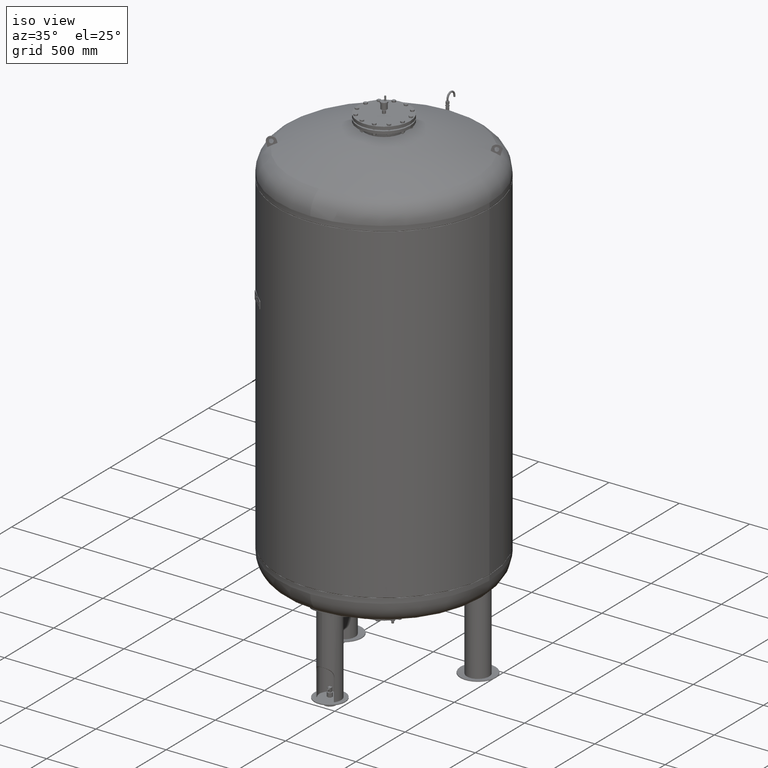
[diagram: clean part render]
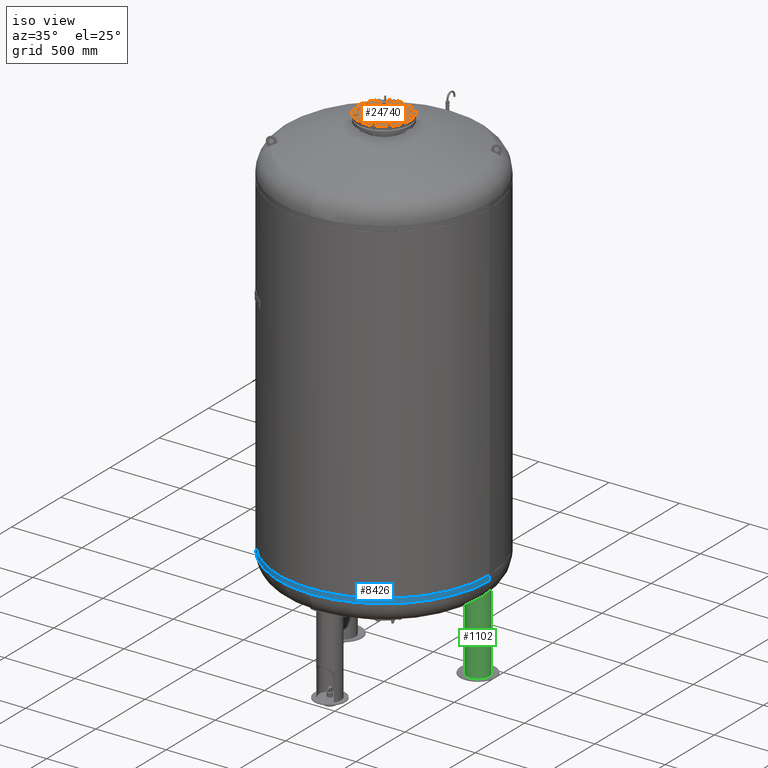
[diagram: same view with three faces highlighted in distinct colors, each labeled with its STEP entity id]
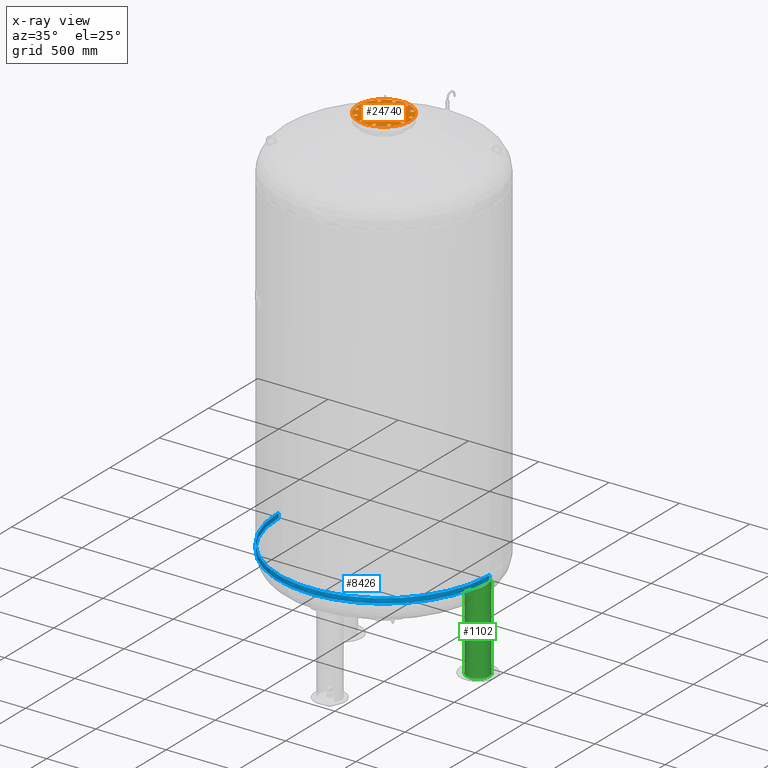
[diagram: x-ray of the same camera — body ghosted, the three highlighted faces saturated]
A machine part, iso view with three faces highlighted in distinct colors.
The next image is the same camera in x-ray (body ghosted, the three faces saturated) — at least one of them is partly hidden behind the body in this view.
Their STEP definitions:

[orange] entity #24740 — the highlighted planar face has unit normal (0, 0, 1).
#16978=CARTESIAN_POINT('',(-187.500000000000000,0.0,3591.0));
#16979=VERTEX_POINT('',#16978);
#16995=CARTESIAN_POINT('',(187.500000000000000,-2.296137E-014,3591.0));
#16996=VERTEX_POINT('',#16995);
#17003=CARTESIAN_POINT('',(0.0,0.0,3591.0));
#17004=DIRECTION('',(0.0,0.0,-1.0));
#17005=DIRECTION('',(-1.0,0.0,0.0));
#17006=AXIS2_PLACEMENT_3D('',#17003,#17004,#17005);
#17007=CIRCLE('',#17006,187.500000000000000);
#17008=EDGE_CURVE('',#16996,#16979,#17007,.T.);
#22234=CARTESIAN_POINT('',(157.729139400922860,30.104983413641008,3591.0));
#22235=VERTEX_POINT('',#22234);
#22236=CARTESIAN_POINT('',(148.288440171855850,40.247625971983268,3591.0));
#22237=VERTEX_POINT('',#22236);
#22238=CARTESIAN_POINT('',(157.729139400922860,30.104983413641008,3591.0));
#22239=DIRECTION('',(-0.681323780155013,0.731982176419128,0.0));
#22240=VECTOR('',#22239,13.856406460551090);
#22241=LINE('',#22238,#22240);
#22242=EDGE_CURVE('',#22235,#22237,#22241,.T.);
#22274=CARTESIAN_POINT('',(171.233275132485970,33.209547496330110,3591.0));
#22275=VERTEX_POINT('',#22274);
#22276=CARTESIAN_POINT('',(171.233275132485970,33.209547496330110,3591.0));
#22277=DIRECTION('',(-0.974577049973894,-0.224052613607123,0.0));
#22278=VECTOR('',#22277,13.856406460551119);
#22279=LINE('',#22276,#22278);
#22280=EDGE_CURVE('',#22275,#22235,#22279,.T.);
#22305=CARTESIAN_POINT('',(175.296711634982050,46.456754137361422,3591.0));
#22306=VERTEX_POINT('',#22305);
#22307=CARTESIAN_POINT('',(175.296711634982050,46.456754137361422,3591.0));
#22308=DIRECTION('',(-0.293253269818881,-0.956034790026249,0.0));
#22309=VECTOR('',#22308,13.856406460551076);
#22310=LINE('',#22307,#22309);
#22311=EDGE_CURVE('',#22306,#22275,#22310,.T.);
#22336=CARTESIAN_POINT('',(152.351876674351930,53.494832613014587,3591.0));
#22337=VERTEX_POINT('',#22336);
#22338=CARTESIAN_POINT('',(148.288440171855850,40.247625971983268,3591.0));
#22339=DIRECTION('',(0.293253269818881,0.956034790026249,0.0));
#22340=VECTOR('',#22339,13.856406460551083);
#22341=LINE('',#22338,#22340);
#22342=EDGE_CURVE('',#22237,#22337,#22341,.T.);
#22367=CARTESIAN_POINT('',(165.856012405915040,56.599396695703689,3591.0));
#22368=VERTEX_POINT('',#22367);
#22369=CARTESIAN_POINT('',(152.351876674351930,53.494832613014587,3591.0));
#22370=DIRECTION('',(0.974577049973894,0.224052613607123,0.0));
#22371=VECTOR('',#22370,13.856406460551119);
#22372=LINE('',#22369,#22371);
#22373=EDGE_CURVE('',#22337,#22368,#22372,.T.);
#22398=CARTESIAN_POINT('',(165.856012405915040,56.599396695703689,3591.0));
#22399=DIRECTION('',(0.681323780155012,-0.731982176419129,0.0));
#22400=VECTOR('',#22399,13.856406460551096);
#22401=LINE('',#22398,#22400);
#22402=EDGE_CURVE('',#22368,#22306,#22401,.T.);
#22434=CARTESIAN_POINT('',(121.544949931435720,104.936250117183760,3591.0));
#22435=VERTEX_POINT('',#22434);
#22436=CARTESIAN_POINT('',(108.297743290404380,108.999686619679820,3591.0));
#22437=VERTEX_POINT('',#22436);
#22438=CARTESIAN_POINT('',(121.544949931435720,104.936250117183760,3591.0));
#22439=DIRECTION('',(-0.956034790026250,0.293253269818880,0.0));
#22440=VECTOR('',#22439,13.856406460551101);
#22441=LINE('',#22438,#22440);
#22442=EDGE_CURVE('',#22435,#22437,#22441,.T.);
#22474=CARTESIAN_POINT('',(131.687592489777960,114.376949346250780,3591.0));
#22475=VERTEX_POINT('',#22474);
#22476=CARTESIAN_POINT('',(131.687592489777960,114.376949346250780,3591.0));
#22477=DIRECTION('',(-0.731982176419127,-0.681323780155014,0.0));
#22478=VECTOR('',#22477,13.856406460551080);
#22479=LINE('',#22476,#22478);
#22480=EDGE_CURVE('',#22475,#22435,#22479,.T.);
#22505=CARTESIAN_POINT('',(128.583028407088880,127.881085077813880,3591.0));
#22506=VERTEX_POINT('',#22505);
#22507=CARTESIAN_POINT('',(128.583028407088880,127.881085077813880,3591.0));
#22508=DIRECTION('',(0.224052613607122,-0.974577049973894,0.0));
#22509=VECTOR('',#22508,13.856406460551099);
#22510=LINE('',#22507,#22509);
#22511=EDGE_CURVE('',#22506,#22475,#22510,.T.);
#22536=CARTESIAN_POINT('',(105.193179207715300,122.503822351242900,3591.0));
#22537=VERTEX_POINT('',#22536);
#22538=CARTESIAN_POINT('',(108.297743290404380,108.999686619679820,3591.0));
#22539=DIRECTION('',(-0.224052613607122,0.974577049973894,0.0));
#22540=VECTOR('',#22539,13.856406460551087);
#22541=LINE('',#22538,#22540);
#22542=EDGE_CURVE('',#22437,#22537,#22541,.T.);
#22567=CARTESIAN_POINT('',(115.335821766057560,131.944521580309950,3591.0));
#22568=VERTEX_POINT('',#22567);
#22569=CARTESIAN_POINT('',(105.193179207715300,122.503822351242900,3591.0));
#22570=DIRECTION('',(0.731982176419127,0.681323780155014,0.0));
#22571=VECTOR('',#22570,13.856406460551121);
#22572=LINE('',#22569,#22571);
#22573=EDGE_CURVE('',#22537,#22568,#22572,.T.);
#22598=CARTESIAN_POINT('',(115.335821766057560,131.944521580309950,3591.0));
#22599=DIRECTION('',(0.956034790026249,-0.293253269818881,0.0));
#22600=VECTOR('',#22599,13.856406460551076);
#22601=LINE('',#22598,#22600);
#22602=EDGE_CURVE('',#22568,#22506,#22601,.T.);
#22634=CARTESIAN_POINT('',(52.792889283739193,151.649933345076730,3591.0));
#22635=VERTEX_POINT('',#22634);
#22636=CARTESIAN_POINT('',(39.288753552176118,148.545369262387680,3591.0));
#22637=VERTEX_POINT('',#22636);
#22638=CARTESIAN_POINT('',(52.792889283739193,151.649933345076730,3591.0));
#22639=DIRECTION('',(-0.974577049973894,-0.224052613607120,0.0));
#22640=VECTOR('',#22639,13.856406460551073);
#22641=LINE('',#22638,#22640);
#22642=EDGE_CURVE('',#22635,#22637,#22641,.T.);
#22674=CARTESIAN_POINT('',(56.856325786235274,164.897139986108100,3591.0));
#22675=VERTEX_POINT('',#22674);
#22676=CARTESIAN_POINT('',(56.856325786235274,164.897139986108100,3591.0));
#22677=DIRECTION('',(-0.293253269818881,-0.956034790026249,0.0));
#22678=VECTOR('',#22677,13.856406460551133);
#22679=LINE('',#22676,#22678);
#22680=EDGE_CURVE('',#22675,#22635,#22679,.T.);
#22705=CARTESIAN_POINT('',(47.415626557168267,175.039782544450330,3591.0));
#22706=VERTEX_POINT('',#22705);
#22707=CARTESIAN_POINT('',(47.415626557168267,175.039782544450330,3591.0));
#22708=DIRECTION('',(0.681323780155014,-0.731982176419128,0.0));
#22709=VECTOR('',#22708,13.856406460551069);
#22710=LINE('',#22707,#22709);
#22711=EDGE_CURVE('',#22706,#22675,#22710,.T.);
#22736=CARTESIAN_POINT('',(29.848054323109103,158.688011820729910,3591.0));
#22737=VERTEX_POINT('',#22736);
#22738=CARTESIAN_POINT('',(39.288753552176118,148.545369262387680,3591.0));
#22739=DIRECTION('',(-0.681323780155014,0.731982176419127,0.0));
#22740=VECTOR('',#22739,13.856406460551076);
#22741=LINE('',#22738,#22740);
#22742=EDGE_CURVE('',#22637,#22737,#22741,.T.);
#22767=CARTESIAN_POINT('',(33.911490825605156,171.935218461761250,3591.0));
#22768=VERTEX_POINT('',#22767);
#22769=CARTESIAN_POINT('',(29.848054323109103,158.688011820729910,3591.0));
#22770=DIRECTION('',(0.293253269818879,0.956034790026250,0.0));
#22771=VECTOR('',#22770,13.856406460551097);
#22772=LINE('',#22769,#22771);
#22773=EDGE_CURVE('',#22737,#22768,#22772,.T.);
#22798=CARTESIAN_POINT('',(33.911490825605156,171.935218461761250,3591.0));
#22799=DIRECTION('',(0.974577049973894,0.224052613607121,0.0));
#22800=VECTOR('',#22799,13.856406460551113);
#22801=LINE('',#22798,#22800);
#22802=EDGE_CURVE('',#22768,#22706,#22801,.T.);
#22834=CARTESIAN_POINT('',(-30.104983413641008,157.729139400922860,3591.0));
#22835=VERTEX_POINT('',#22834);
#22836=CARTESIAN_POINT('',(-40.247625971983268,148.288440171855850,3591.0));
#22837=VERTEX_POINT('',#22836);
#22838=CARTESIAN_POINT('',(-30.104983413641008,157.729139400922860,3591.0));
#22839=DIRECTION('',(-0.731982176419128,-0.681323780155013,0.0));
#22840=VECTOR('',#22839,13.856406460551090);
#22841=LINE('',#22838,#22840);
#22842=EDGE_CURVE('',#22835,#22837,#22841,.T.);
#22874=CARTESIAN_POINT('',(-33.209547496330110,171.233275132485970,3591.0));
#22875=VERTEX_POINT('',#22874);
#22876=CARTESIAN_POINT('',(-33.209547496330110,171.233275132485970,3591.0));
#22877=DIRECTION('',(0.224052613607123,-0.974577049973894,0.0));
#22878=VECTOR('',#22877,13.856406460551119);
#22879=LINE('',#22876,#22878);
#22880=EDGE_CURVE('',#22875,#22835,#22879,.T.);
#22905=CARTESIAN_POINT('',(-46.456754137361422,175.296711634982050,3591.0));
#22906=VERTEX_POINT('',#22905);
#22907=CARTESIAN_POINT('',(-46.456754137361422,175.296711634982050,3591.0));
#22908=DIRECTION('',(0.956034790026249,-0.293253269818881,0.0));
#22909=VECTOR('',#22908,13.856406460551076);
#22910=LINE('',#22907,#22909);
#22911=EDGE_CURVE('',#22906,#22875,#22910,.T.);
#22936=CARTESIAN_POINT('',(-53.494832613014587,152.351876674351930,3591.0));
#22937=VERTEX_POINT('',#22936);
#22938=CARTESIAN_POINT('',(-40.247625971983268,148.288440171855850,3591.0));
#22939=DIRECTION('',(-0.956034790026249,0.293253269818881,0.0));
#22940=VECTOR('',#22939,13.856406460551083);
#22941=LINE('',#22938,#22940);
#22942=EDGE_CURVE('',#22837,#22937,#22941,.T.);
#22967=CARTESIAN_POINT('',(-56.599396695703689,165.856012405915040,3591.0));
#22968=VERTEX_POINT('',#22967);
#22969=CARTESIAN_POINT('',(-53.494832613014587,152.351876674351930,3591.0));
#22970=DIRECTION('',(-0.224052613607123,0.974577049973894,0.0));
#22971=VECTOR('',#22970,13.856406460551119);
#22972=LINE('',#22969,#22971);
#22973=EDGE_CURVE('',#22937,#22968,#22972,.T.);
#22998=CARTESIAN_POINT('',(-56.599396695703689,165.856012405915040,3591.0));
#22999=DIRECTION('',(0.731982176419129,0.681323780155012,0.0));
#23000=VECTOR('',#22999,13.856406460551096);
#23001=LINE('',#22998,#23000);
#23002=EDGE_CURVE('',#22968,#22906,#23001,.T.);
#23034=CARTESIAN_POINT('',(-104.936250117183700,121.544949931435750,3591.0));
#23035=VERTEX_POINT('',#23034);
#23036=CARTESIAN_POINT('',(-108.999686619679760,108.297743290404440,3591.0));
#23037=VERTEX_POINT('',#23036);
#23038=CARTESIAN_POINT('',(-104.936250117183700,121.544949931435750,3591.0));
#23039=DIRECTION('',(-0.293253269818880,-0.956034790026249,0.0));
#23040=VECTOR('',#23039,13.856406460551073);
#23041=LINE('',#23038,#23040);
#23042=EDGE_CURVE('',#23035,#23037,#23041,.T.);
#23074=CARTESIAN_POINT('',(-114.376949346250730,131.687592489778010,3591.0));
#23075=VERTEX_POINT('',#23074);
#23076=CARTESIAN_POINT('',(-114.376949346250730,131.687592489778010,3591.0));
#23077=DIRECTION('',(0.681323780155013,-0.731982176419128,0.0));
#23078=VECTOR('',#23077,13.856406460551101);
#23079=LINE('',#23076,#23078);
#23080=EDGE_CURVE('',#23075,#23035,#23079,.T.);
#23105=CARTESIAN_POINT('',(-127.881085077813810,128.583028407088930,3591.0));
#23106=VERTEX_POINT('',#23105);
#23107=CARTESIAN_POINT('',(-127.881085077813810,128.583028407088930,3591.0));
#23108=DIRECTION('',(0.974577049973894,0.224052613607122,0.0));
#23109=VECTOR('',#23108,13.856406460551087);
#23110=LINE('',#23107,#23109);
#23111=EDGE_CURVE('',#23106,#23075,#23110,.T.);
#23136=CARTESIAN_POINT('',(-122.503822351242850,105.193179207715360,3591.0));
#23137=VERTEX_POINT('',#23136);
#23138=CARTESIAN_POINT('',(-108.999686619679760,108.297743290404440,3591.0));
#23139=DIRECTION('',(-0.974577049973894,-0.224052613607122,0.0));
#23140=VECTOR('',#23139,13.856406460551087);
#23141=LINE('',#23138,#23140);
#23142=EDGE_CURVE('',#23037,#23137,#23141,.T.);
#23167=CARTESIAN_POINT('',(-131.944521580309900,115.335821766057620,3591.0));
#23168=VERTEX_POINT('',#23167);
#23169=CARTESIAN_POINT('',(-122.503822351242850,105.193179207715360,3591.0));
#23170=DIRECTION('',(-0.681323780155014,0.731982176419127,0.0));
#23171=VECTOR('',#23170,13.856406460551121);
#23172=LINE('',#23169,#23171);
#23173=EDGE_CURVE('',#23137,#23168,#23172,.T.);
#23198=CARTESIAN_POINT('',(-131.944521580309900,115.335821766057620,3591.0));
#23199=DIRECTION('',(0.293253269818882,0.956034790026249,0.0));
#23200=VECTOR('',#23199,13.856406460551081);
#23201=LINE('',#23198,#23200);
#23202=EDGE_CURVE('',#23168,#23106,#23201,.T.);
#23234=CARTESIAN_POINT('',(-151.649933345076730,52.792889283739214,3591.0));
#23235=VERTEX_POINT('',#23234);
#23236=CARTESIAN_POINT('',(-148.545369262387650,39.288753552176125,3591.0));
#23237=VERTEX_POINT('',#23236);
#23238=CARTESIAN_POINT('',(-151.649933345076730,52.792889283739214,3591.0));
#23239=DIRECTION('',(0.224052613607122,-0.974577049973894,0.0));
#23240=VECTOR('',#23239,13.856406460551092);
#23241=LINE('',#23238,#23240);
#23242=EDGE_CURVE('',#23235,#23237,#23241,.T.);
#23274=CARTESIAN_POINT('',(-164.897139986108100,56.856325786235296,3591.0));
#23275=VERTEX_POINT('',#23274);
#23276=CARTESIAN_POINT('',(-164.897139986108100,56.856325786235296,3591.0));
#23277=DIRECTION('',(0.956034790026249,-0.293253269818881,0.0));
#23278=VECTOR('',#23277,13.856406460551133);
#23279=LINE('',#23276,#23278);
#23280=EDGE_CURVE('',#23275,#23235,#23279,.T.);
#23305=CARTESIAN_POINT('',(-175.039782544450300,47.415626557168260,3591.0));
#23306=VERTEX_POINT('',#23305);
#23307=CARTESIAN_POINT('',(-175.039782544450300,47.415626557168260,3591.0));
#23308=DIRECTION('',(0.731982176419126,0.681323780155016,0.0));
#23309=VECTOR('',#23308,13.856406460551069);
#23310=LINE('',#23307,#23309);
#23311=EDGE_CURVE('',#23306,#23275,#23310,.T.);
#23336=CARTESIAN_POINT('',(-158.688011820729910,29.848054323109110,3591.0));
#23337=VERTEX_POINT('',#23336);
#23338=CARTESIAN_POINT('',(-148.545369262387650,39.288753552176125,3591.0));
#23339=DIRECTION('',(-0.731982176419128,-0.681323780155013,0.0));
#23340=VECTOR('',#23339,13.856406460551096);
#23341=LINE('',#23338,#23340);
#23342=EDGE_CURVE('',#23237,#23337,#23341,.T.);
#23367=CARTESIAN_POINT('',(-171.935218461761250,33.911490825605171,3591.0));
#23368=VERTEX_POINT('',#23367);
#23369=CARTESIAN_POINT('',(-158.688011820729910,29.848054323109110,3591.0));
#23370=DIRECTION('',(-0.956034790026250,0.293253269818880,0.0));
#23371=VECTOR('',#23370,13.856406460551101);
#23372=LINE('',#23369,#23371);
#23373=EDGE_CURVE('',#23337,#23368,#23372,.T.);
#23398=CARTESIAN_POINT('',(-171.935218461761250,33.911490825605171,3591.0));
#23399=DIRECTION('',(-0.224052613607120,0.974577049973894,0.0));
#23400=VECTOR('',#23399,13.856406460551087);
#23401=LINE('',#23398,#23400);
#23402=EDGE_CURVE('',#23368,#23306,#23401,.T.);
#23434=CARTESIAN_POINT('',(-157.729139400922860,-30.104983413640987,3591.0));
#23435=VERTEX_POINT('',#23434);
#23436=CARTESIAN_POINT('',(-148.288440171855850,-40.247625971983247,3591.0));
#23437=VERTEX_POINT('',#23436);
#23438=CARTESIAN_POINT('',(-157.729139400922860,-30.104983413640987,3591.0));
#23439=DIRECTION('',(0.681323780155013,-0.731982176419128,0.0));
#23440=VECTOR('',#23439,13.856406460551090);
#23441=LINE('',#23438,#23440);
#23442=EDGE_CURVE('',#23435,#23437,#23441,.T.);
#23474=CARTESIAN_POINT('',(-171.233275132486000,-33.209547496330096,3591.0));
#23475=VERTEX_POINT('',#23474);
#23476=CARTESIAN_POINT('',(-171.233275132486000,-33.209547496330096,3591.0));
#23477=DIRECTION('',(0.974577049973894,0.224052613607123,0.0));
#23478=VECTOR('',#23477,13.856406460551147);
#23479=LINE('',#23476,#23478);
#23480=EDGE_CURVE('',#23475,#23435,#23479,.T.);
#23505=CARTESIAN_POINT('',(-175.296711634982050,-46.456754137361401,3591.0));
#23506=VERTEX_POINT('',#23505);
#23507=CARTESIAN_POINT('',(-175.296711634982050,-46.456754137361401,3591.0));
#23508=DIRECTION('',(0.293253269818880,0.956034790026250,0.0));
#23509=VECTOR('',#23508,13.856406460551062);
#23510=LINE('',#23507,#23509);
#23511=EDGE_CURVE('',#23506,#23475,#23510,.T.);
#23536=CARTESIAN_POINT('',(-152.351876674351960,-53.494832613014580,3591.0));
#23537=VERTEX_POINT('',#23536);
#23538=CARTESIAN_POINT('',(-148.288440171855850,-40.247625971983247,3591.0));
#23539=DIRECTION('',(-0.293253269818883,-0.956034790026249,0.0));
#23540=VECTOR('',#23539,13.856406460551106);
#23541=LINE('',#23538,#23540);
#23542=EDGE_CURVE('',#23437,#23537,#23541,.T.);
#23567=CARTESIAN_POINT('',(-165.856012405915070,-56.599396695703646,3591.0));
#23568=VERTEX_POINT('',#23567);
#23569=CARTESIAN_POINT('',(-152.351876674351960,-53.494832613014580,3591.0));
#23570=DIRECTION('',(-0.974577049973894,-0.224052613607121,0.0));
#23571=VECTOR('',#23570,13.856406460551110);
#23572=LINE('',#23569,#23571);
#23573=EDGE_CURVE('',#23537,#23568,#23572,.T.);
#23598=CARTESIAN_POINT('',(-165.856012405915070,-56.599396695703646,3591.0));
#23599=DIRECTION('',(-0.681323780155012,0.731982176419129,0.0));
#23600=VECTOR('',#23599,13.856406460551062);
#23601=LINE('',#23598,#23600);
#23602=EDGE_CURVE('',#23568,#23506,#23601,.T.);
#23634=CARTESIAN_POINT('',(-121.544949931435750,-104.936250117183680,3591.0));
#23635=VERTEX_POINT('',#23634);
#23636=CARTESIAN_POINT('',(-108.297743290404440,-108.999686619679760,3591.0));
#23637=VERTEX_POINT('',#23636);
#23638=CARTESIAN_POINT('',(-121.544949931435750,-104.936250117183680,3591.0));
#23639=DIRECTION('',(0.956034790026249,-0.293253269818882,0.0));
#23640=VECTOR('',#23639,13.856406460551081);
#23641=LINE('',#23638,#23640);
#23642=EDGE_CURVE('',#23635,#23637,#23641,.T.);
#23674=CARTESIAN_POINT('',(-131.687592489778010,-114.376949346250730,3591.0));
#23675=VERTEX_POINT('',#23674);
#23676=CARTESIAN_POINT('',(-131.687592489778010,-114.376949346250730,3591.0));
#23677=DIRECTION('',(0.731982176419127,0.681323780155014,0.0));
#23678=VECTOR('',#23677,13.856406460551121);
#23679=LINE('',#23676,#23678);
#23680=EDGE_CURVE('',#23675,#23635,#23679,.T.);
#23705=CARTESIAN_POINT('',(-128.583028407088930,-127.881085077813790,3591.0));
#23706=VERTEX_POINT('',#23705);
#23707=CARTESIAN_POINT('',(-128.583028407088930,-127.881085077813790,3591.0));
#23708=DIRECTION('',(-0.224052613607122,0.974577049973894,0.0));
#23709=VECTOR('',#23708,13.856406460551071);
#23710=LINE('',#23707,#23709);
#23711=EDGE_CURVE('',#23706,#23675,#23710,.T.);
#23736=CARTESIAN_POINT('',(-105.193179207715360,-122.503822351242850,3591.0));
#23737=VERTEX_POINT('',#23736);
#23738=CARTESIAN_POINT('',(-108.297743290404440,-108.999686619679760,3591.0));
#23739=DIRECTION('',(0.224052613607122,-0.974577049973894,0.0));
#23740=VECTOR('',#23739,13.856406460551087);
#23741=LINE('',#23738,#23740);
#23742=EDGE_CURVE('',#23637,#23737,#23741,.T.);
#23767=CARTESIAN_POINT('',(-115.335821766057620,-131.944521580309900,3591.0));
#23768=VERTEX_POINT('',#23767);
#23769=CARTESIAN_POINT('',(-105.193179207715360,-122.503822351242850,3591.0));
#23770=DIRECTION('',(-0.731982176419127,-0.681323780155014,0.0));
#23771=VECTOR('',#23770,13.856406460551121);
#23772=LINE('',#23769,#23771);
#23773=EDGE_CURVE('',#23737,#23768,#23772,.T.);
#23798=CARTESIAN_POINT('',(-115.335821766057620,-131.944521580309900,3591.0));
#23799=DIRECTION('',(-0.956034790026249,0.293253269818883,0.0));
#23800=VECTOR('',#23799,13.856406460551085);
#23801=LINE('',#23798,#23800);
#23802=EDGE_CURVE('',#23768,#23706,#23801,.T.);
#23834=CARTESIAN_POINT('',(-52.792889283739228,-151.649933345076730,3591.0));
#23835=VERTEX_POINT('',#23834);
#23836=CARTESIAN_POINT('',(-39.288753552176132,-148.545369262387680,3591.0));
#23837=VERTEX_POINT('',#23836);
#23838=CARTESIAN_POINT('',(-52.792889283739228,-151.649933345076730,3591.0));
#23839=DIRECTION('',(0.974577049973894,0.224052613607120,0.0));
#23840=VECTOR('',#23839,13.856406460551094);
#23841=LINE('',#23838,#23840);
#23842=EDGE_CURVE('',#23835,#23837,#23841,.T.);
#23874=CARTESIAN_POINT('',(-56.856325786235296,-164.897139986108100,3591.0));
#23875=VERTEX_POINT('',#23874);
#23876=CARTESIAN_POINT('',(-56.856325786235296,-164.897139986108100,3591.0));
#23877=DIRECTION('',(0.293253269818880,0.956034790026250,0.0));
#23878=VECTOR('',#23877,13.856406460551129);
#23879=LINE('',#23876,#23878);
#23880=EDGE_CURVE('',#23875,#23835,#23879,.T.);
#23905=CARTESIAN_POINT('',(-47.415626557168281,-175.039782544450300,3591.0));
#23906=VERTEX_POINT('',#23905);
#23907=CARTESIAN_POINT('',(-47.415626557168281,-175.039782544450300,3591.0));
#23908=DIRECTION('',(-0.681323780155015,0.731982176419126,0.0));
#23909=VECTOR('',#23908,13.856406460551055);
#23910=LINE('',#23907,#23909);
#23911=EDGE_CURVE('',#23906,#23875,#23910,.T.);
#23936=CARTESIAN_POINT('',(-29.848054323109121,-158.688011820729910,3591.0));
#23937=VERTEX_POINT('',#23936);
#23938=CARTESIAN_POINT('',(-39.288753552176132,-148.545369262387680,3591.0));
#23939=DIRECTION('',(0.681323780155014,-0.731982176419127,0.0));
#23940=VECTOR('',#23939,13.856406460551073);
#23941=LINE('',#23938,#23940);
#23942=EDGE_CURVE('',#23837,#23937,#23941,.T.);
#23967=CARTESIAN_POINT('',(-33.911490825605199,-171.935218461761280,3591.0));
#23968=VERTEX_POINT('',#23967);
#23969=CARTESIAN_POINT('',(-29.848054323109121,-158.688011820729910,3591.0));
#23970=DIRECTION('',(-0.293253269818880,-0.956034790026249,0.0));
#23971=VECTOR('',#23970,13.856406460551133);
#23972=LINE('',#23969,#23971);
#23973=EDGE_CURVE('',#23937,#23968,#23972,.T.);
#23998=CARTESIAN_POINT('',(-33.911490825605199,-171.935218461761280,3591.0));
#23999=DIRECTION('',(-0.974577049973895,-0.224052613607118,0.0));
#24000=VECTOR('',#23999,13.856406460551074);
#24001=LINE('',#23998,#24000);
#24002=EDGE_CURVE('',#23968,#23906,#24001,.T.);
#24034=CARTESIAN_POINT('',(30.104983413640952,-157.729139400922890,3591.0));
#24035=VERTEX_POINT('',#24034);
#24036=CARTESIAN_POINT('',(40.247625971983211,-148.288440171855880,3591.0));
#24037=VERTEX_POINT('',#24036);
#24038=CARTESIAN_POINT('',(30.104983413640952,-157.729139400922890,3591.0));
#24039=DIRECTION('',(0.731982176419128,0.681323780155013,0.0));
#24040=VECTOR('',#24039,13.856406460551090);
#24041=LINE('',#24038,#24040);
#24042=EDGE_CURVE('',#24035,#24037,#24041,.T.);
#24074=CARTESIAN_POINT('',(33.209547496330039,-171.233275132486000,3591.0));
#24075=VERTEX_POINT('',#24074);
#24076=CARTESIAN_POINT('',(33.209547496330039,-171.233275132486000,3591.0));
#24077=DIRECTION('',(-0.224052613607122,0.974577049973894,0.0));
#24078=VECTOR('',#24077,13.856406460551115);
#24079=LINE('',#24076,#24078);
#24080=EDGE_CURVE('',#24075,#24035,#24079,.T.);
#24105=CARTESIAN_POINT('',(46.456754137361351,-175.296711634982070,3591.0));
#24106=VERTEX_POINT('',#24105);
#24107=CARTESIAN_POINT('',(46.456754137361351,-175.296711634982070,3591.0));
#24108=DIRECTION('',(-0.956034790026249,0.293253269818881,0.0));
#24109=VECTOR('',#24108,13.856406460551076);
#24110=LINE('',#24107,#24109);
#24111=EDGE_CURVE('',#24106,#24075,#24110,.T.);
#24136=CARTESIAN_POINT('',(53.494832613014523,-152.351876674351960,3591.0));
#24137=VERTEX_POINT('',#24136);
#24138=CARTESIAN_POINT('',(40.247625971983211,-148.288440171855880,3591.0));
#24139=DIRECTION('',(0.956034790026249,-0.293253269818881,0.0));
#24140=VECTOR('',#24139,13.856406460551076);
#24141=LINE('',#24138,#24140);
#24142=EDGE_CURVE('',#24037,#24137,#24141,.T.);
#24167=CARTESIAN_POINT('',(56.599396695703625,-165.856012405915070,3591.0));
#24168=VERTEX_POINT('',#24167);
#24169=CARTESIAN_POINT('',(53.494832613014523,-152.351876674351960,3591.0));
#24170=DIRECTION('',(0.224052613607123,-0.974577049973894,0.0));
#24171=VECTOR('',#24170,13.856406460551119);
#24172=LINE('',#24169,#24171);
#24173=EDGE_CURVE('',#24137,#24168,#24172,.T.);
#24198=CARTESIAN_POINT('',(56.599396695703625,-165.856012405915070,3591.0));
#24199=DIRECTION('',(-0.731982176419129,-0.681323780155012,0.0));
#24200=VECTOR('',#24199,13.856406460551101);
#24201=LINE('',#24198,#24200);
#24202=EDGE_CURVE('',#24168,#24106,#24201,.T.);
#24234=CARTESIAN_POINT('',(104.936250117183660,-121.544949931435800,3591.0));
#24235=VERTEX_POINT('',#24234);
#24236=CARTESIAN_POINT('',(108.999686619679750,-108.297743290404470,3591.0));
#24237=VERTEX_POINT('',#24236);
#24238=CARTESIAN_POINT('',(104.936250117183660,-121.544949931435800,3591.0));
#24239=DIRECTION('',(0.293253269818882,0.956034790026249,0.0));
#24240=VECTOR('',#24239,13.856406460551094);
#24241=LINE('',#24238,#24240);
#24242=EDGE_CURVE('',#24235,#24237,#24241,.T.);
#24274=CARTESIAN_POINT('',(114.376949346250710,-131.687592489778040,3591.0));
#24275=VERTEX_POINT('',#24274);
#24276=CARTESIAN_POINT('',(114.376949346250710,-131.687592489778040,3591.0));
#24277=DIRECTION('',(-0.681323780155015,0.731982176419126,0.0));
#24278=VECTOR('',#24277,13.856406460551110);
#24279=LINE('',#24276,#24278);
#24280=EDGE_CURVE('',#24275,#24235,#24279,.T.);
#24305=CARTESIAN_POINT('',(127.881085077813760,-128.583028407088960,3591.0));
#24306=VERTEX_POINT('',#24305);
#24307=CARTESIAN_POINT('',(127.881085077813760,-128.583028407088960,3591.0));
#24308=DIRECTION('',(-0.974577049973894,-0.224052613607122,0.0));
#24309=VECTOR('',#24308,13.856406460551058);
#24310=LINE('',#24307,#24309);
#24311=EDGE_CURVE('',#24306,#24275,#24310,.T.);
#24336=CARTESIAN_POINT('',(122.503822351242830,-105.193179207715390,3591.0));
#24337=VERTEX_POINT('',#24336);
#24338=CARTESIAN_POINT('',(108.999686619679750,-108.297743290404470,3591.0));
#24339=DIRECTION('',(0.974577049973894,0.224052613607122,0.0));
#24340=VECTOR('',#24339,13.856406460551087);
#24341=LINE('',#24338,#24340);
#24342=EDGE_CURVE('',#24237,#24337,#24341,.T.);
#24367=CARTESIAN_POINT('',(131.944521580309870,-115.335821766057650,3591.0));
#24368=VERTEX_POINT('',#24367);
#24369=CARTESIAN_POINT('',(122.503822351242830,-105.193179207715390,3591.0));
#24370=DIRECTION('',(0.681323780155014,-0.731982176419127,0.0));
#24371=VECTOR('',#24370,13.856406460551110);
#24372=LINE('',#24369,#24371);
#24373=EDGE_CURVE('',#24337,#24368,#24372,.T.);
#24398=CARTESIAN_POINT('',(131.944521580309870,-115.335821766057650,3591.0));
#24399=DIRECTION('',(-0.293253269818883,-0.956034790026249,0.0));
#24400=VECTOR('',#24399,13.856406460551085);
#24401=LINE('',#24398,#24400);
#24402=EDGE_CURVE('',#24368,#24306,#24401,.T.);
#24434=CARTESIAN_POINT('',(151.649933345076730,-52.792889283739228,3591.0));
#24435=VERTEX_POINT('',#24434);
#24436=CARTESIAN_POINT('',(148.545369262387650,-39.288753552176139,3591.0));
#24437=VERTEX_POINT('',#24436);
#24438=CARTESIAN_POINT('',(151.649933345076730,-52.792889283739228,3591.0));
#24439=DIRECTION('',(-0.224052613607122,0.974577049973894,0.0));
#24440=VECTOR('',#24439,13.856406460551092);
#24441=LINE('',#24438,#24440);
#24442=EDGE_CURVE('',#24435,#24437,#24441,.T.);
#24474=CARTESIAN_POINT('',(164.897139986108070,-56.856325786235303,3591.0));
#24475=VERTEX_POINT('',#24474);
#24476=CARTESIAN_POINT('',(164.897139986108070,-56.856325786235303,3591.0));
#24477=DIRECTION('',(-0.956034790026249,0.293253269818881,0.0));
#24478=VECTOR('',#24477,13.856406460551105);
#24479=LINE('',#24476,#24478);
#24480=EDGE_CURVE('',#24475,#24435,#24479,.T.);
#24505=CARTESIAN_POINT('',(175.039782544450300,-47.415626557168295,3591.0));
#24506=VERTEX_POINT('',#24505);
#24507=CARTESIAN_POINT('',(175.039782544450300,-47.415626557168295,3591.0));
#24508=DIRECTION('',(-0.731982176419128,-0.681323780155014,0.0));
#24509=VECTOR('',#24508,13.856406460551069);
#24510=LINE('',#24507,#24509);
#24511=EDGE_CURVE('',#24506,#24475,#24510,.T.);
#24536=CARTESIAN_POINT('',(158.688011820729910,-29.848054323109132,3591.0));
#24537=VERTEX_POINT('',#24536);
#24538=CARTESIAN_POINT('',(148.545369262387650,-39.288753552176139,3591.0));
#24539=DIRECTION('',(0.731982176419128,0.681323780155013,0.0));
#24540=VECTOR('',#24539,13.856406460551090);
#24541=LINE('',#24538,#24540);
#24542=EDGE_CURVE('',#24437,#24537,#24541,.T.);
#24567=CARTESIAN_POINT('',(171.935218461761250,-33.911490825605206,3591.0));
#24568=VERTEX_POINT('',#24567);
#24569=CARTESIAN_POINT('',(158.688011820729910,-29.848054323109132,3591.0));
#24570=DIRECTION('',(0.956034790026249,-0.293253269818881,0.0));
#24571=VECTOR('',#24570,13.856406460551105);
#24572=LINE('',#24569,#24571);
#24573=EDGE_CURVE('',#24537,#24568,#24572,.T.);
#24598=CARTESIAN_POINT('',(171.935218461761250,-33.911490825605206,3591.0));
#24599=DIRECTION('',(0.224052613607120,-0.974577049973894,0.0));
#24600=VECTOR('',#24599,13.856406460551087);
#24601=LINE('',#24598,#24600);
#24602=EDGE_CURVE('',#24568,#24506,#24601,.T.);
#24629=CARTESIAN_POINT('',(-93.750000000000000,-7.888609E-031,3591.0));
#24630=DIRECTION('',(0.0,0.0,1.0));
#24631=DIRECTION('',(0.0,1.0,0.0));
#24632=AXIS2_PLACEMENT_3D('',#24629,#24630,#24631);
#24633=PLANE('',#24632);
#24634=CARTESIAN_POINT('',(0.0,0.0,3591.0));
#24635=DIRECTION('',(0.0,0.0,-1.0));
#24636=DIRECTION('',(-1.0,0.0,0.0));
#24637=AXIS2_PLACEMENT_3D('',#24634,#24635,#24636);
#24638=CIRCLE('',#24637,187.500000000000000);
#24639=EDGE_CURVE('',#16979,#16996,#24638,.T.);
#24640=ORIENTED_EDGE('',*,*,#24639,.F.);
#24641=ORIENTED_EDGE('',*,*,#17008,.F.);
#24642=EDGE_LOOP('',(#24640,#24641));
#24643=FACE_OUTER_BOUND('',#24642,.T.);
#24644=ORIENTED_EDGE('',*,*,#22242,.T.);
#24645=ORIENTED_EDGE('',*,*,#22342,.T.);
#24646=ORIENTED_EDGE('',*,*,#22373,.T.);
#24647=ORIENTED_EDGE('',*,*,#22402,.T.);
#24648=ORIENTED_EDGE('',*,*,#22311,.T.);
#24649=ORIENTED_EDGE('',*,*,#22280,.T.);
#24650=EDGE_LOOP('',(#24644,#24645,#24646,#24647,#24648,#24649));
#24651=FACE_BOUND('',#24650,.T.);
#24652=ORIENTED_EDGE('',*,*,#22442,.T.);
#24653=ORIENTED_EDGE('',*,*,#22542,.T.);
#24654=ORIENTED_EDGE('',*,*,#22573,.T.);
#24655=ORIENTED_EDGE('',*,*,#22602,.T.);
#24656=ORIENTED_EDGE('',*,*,#22511,.T.);
#24657=ORIENTED_EDGE('',*,*,#22480,.T.);
#24658=EDGE_LOOP('',(#24652,#24653,#24654,#24655,#24656,#24657));
#24659=FACE_BOUND('',#24658,.T.);
#24660=ORIENTED_EDGE('',*,*,#22642,.T.);
#24661=ORIENTED_EDGE('',*,*,#22742,.T.);
#24662=ORIENTED_EDGE('',*,*,#22773,.T.);
#24663=ORIENTED_EDGE('',*,*,#22802,.T.);
#24664=ORIENTED_EDGE('',*,*,#22711,.T.);
#24665=ORIENTED_EDGE('',*,*,#22680,.T.);
#24666=EDGE_LOOP('',(#24660,#24661,#24662,#24663,#24664,#24665));
#24667=FACE_BOUND('',#24666,.T.);
#24668=ORIENTED_EDGE('',*,*,#22842,.T.);
#24669=ORIENTED_EDGE('',*,*,#22942,.T.);
#24670=ORIENTED_EDGE('',*,*,#22973,.T.);
#24671=ORIENTED_EDGE('',*,*,#23002,.T.);
#24672=ORIENTED_EDGE('',*,*,#22911,.T.);
#24673=ORIENTED_EDGE('',*,*,#22880,.T.);
#24674=EDGE_LOOP('',(#24668,#24669,#24670,#24671,#24672,#24673));
#24675=FACE_BOUND('',#24674,.T.);
#24676=ORIENTED_EDGE('',*,*,#23042,.T.);
#24677=ORIENTED_EDGE('',*,*,#23142,.T.);
#24678=ORIENTED_EDGE('',*,*,#23173,.T.);
#24679=ORIENTED_EDGE('',*,*,#23202,.T.);
#24680=ORIENTED_EDGE('',*,*,#23111,.T.);
#24681=ORIENTED_EDGE('',*,*,#23080,.T.);
#24682=EDGE_LOOP('',(#24676,#24677,#24678,#24679,#24680,#24681));
#24683=FACE_BOUND('',#24682,.T.);
#24684=ORIENTED_EDGE('',*,*,#23242,.T.);
#24685=ORIENTED_EDGE('',*,*,#23342,.T.);
#24686=ORIENTED_EDGE('',*,*,#23373,.T.);
#24687=ORIENTED_EDGE('',*,*,#23402,.T.);
#24688=ORIENTED_EDGE('',*,*,#23311,.T.);
#24689=ORIENTED_EDGE('',*,*,#23280,.T.);
#24690=EDGE_LOOP('',(#24684,#24685,#24686,#24687,#24688,#24689));
#24691=FACE_BOUND('',#24690,.T.);
#24692=ORIENTED_EDGE('',*,*,#23442,.T.);
#24693=ORIENTED_EDGE('',*,*,#23542,.T.);
#24694=ORIENTED_EDGE('',*,*,#23573,.T.);
#24695=ORIENTED_EDGE('',*,*,#23602,.T.);
#24696=ORIENTED_EDGE('',*,*,#23511,.T.);
#24697=ORIENTED_EDGE('',*,*,#23480,.T.);
#24698=EDGE_LOOP('',(#24692,#24693,#24694,#24695,#24696,#24697));
#24699=FACE_BOUND('',#24698,.T.);
#24700=ORIENTED_EDGE('',*,*,#23642,.T.);
#24701=ORIENTED_EDGE('',*,*,#23742,.T.);
#24702=ORIENTED_EDGE('',*,*,#23773,.T.);
#24703=ORIENTED_EDGE('',*,*,#23802,.T.);
#24704=ORIENTED_EDGE('',*,*,#23711,.T.);
#24705=ORIENTED_EDGE('',*,*,#23680,.T.);
#24706=EDGE_LOOP('',(#24700,#24701,#24702,#24703,#24704,#24705));
#24707=FACE_BOUND('',#24706,.T.);
#24708=ORIENTED_EDGE('',*,*,#23842,.T.);
#24709=ORIENTED_EDGE('',*,*,#23942,.T.);
#24710=ORIENTED_EDGE('',*,*,#23973,.T.);
#24711=ORIENTED_EDGE('',*,*,#24002,.T.);
#24712=ORIENTED_EDGE('',*,*,#23911,.T.);
#24713=ORIENTED_EDGE('',*,*,#23880,.T.);
#24714=EDGE_LOOP('',(#24708,#24709,#24710,#24711,#24712,#24713));
#24715=FACE_BOUND('',#24714,.T.);
#24716=ORIENTED_EDGE('',*,*,#24042,.T.);
#24717=ORIENTED_EDGE('',*,*,#24142,.T.);
#24718=ORIENTED_EDGE('',*,*,#24173,.T.);
#24719=ORIENTED_EDGE('',*,*,#24202,.T.);
#24720=ORIENTED_EDGE('',*,*,#24111,.T.);
#24721=ORIENTED_EDGE('',*,*,#24080,.T.);
#24722=EDGE_LOOP('',(#24716,#24717,#24718,#24719,#24720,#24721));
#24723=FACE_BOUND('',#24722,.T.);
#24724=ORIENTED_EDGE('',*,*,#24242,.T.);
#24725=ORIENTED_EDGE('',*,*,#24342,.T.);
#24726=ORIENTED_EDGE('',*,*,#24373,.T.);
#24727=ORIENTED_EDGE('',*,*,#24402,.T.);
#24728=ORIENTED_EDGE('',*,*,#24311,.T.);
#24729=ORIENTED_EDGE('',*,*,#24280,.T.);
#24730=EDGE_LOOP('',(#24724,#24725,#24726,#24727,#24728,#24729));
#24731=FACE_BOUND('',#24730,.T.);
#24732=ORIENTED_EDGE('',*,*,#24442,.T.);
#24733=ORIENTED_EDGE('',*,*,#24542,.T.);
#24734=ORIENTED_EDGE('',*,*,#24573,.T.);
#24735=ORIENTED_EDGE('',*,*,#24602,.T.);
#24736=ORIENTED_EDGE('',*,*,#24511,.T.);
#24737=ORIENTED_EDGE('',*,*,#24480,.T.);
#24738=EDGE_LOOP('',(#24732,#24733,#24734,#24735,#24736,#24737));
#24739=FACE_BOUND('',#24738,.T.);
#24740=ADVANCED_FACE('',(#24643,#24651,#24659,#24667,#24675,#24683,#24691,#24699,#24707,#24715,#24723,#24731,#24739),#24633,.T.);

[blue] entity #8426 — the highlighted cylindrical surface (partial cylindrical patch) has radius 750 mm, axis along (-0, -0, 1).
#8274=CARTESIAN_POINT('',(-750.0,-6.062002E-014,819.999999999999890));
#8275=VERTEX_POINT('',#8274);
#8276=CARTESIAN_POINT('',(-750.0,-5.423428E-014,785.237667415897930));
#8277=VERTEX_POINT('',#8276);
#8278=CARTESIAN_POINT('',(-750.0,-6.062002E-014,819.999999999999890));
#8279=DIRECTION('',(0.0,0.0,-1.0));
#8280=VECTOR('',#8279,34.762332584101955);
#8281=LINE('',#8278,#8280);
#8282=EDGE_CURVE('',#8275,#8277,#8281,.T.);
#8284=CARTESIAN_POINT('',(750.0,3.122546E-014,820.000000000000110));
#8285=VERTEX_POINT('',#8284);
#8293=CARTESIAN_POINT('',(750.0,3.761120E-014,785.237667415898160));
#8294=VERTEX_POINT('',#8293);
#8295=CARTESIAN_POINT('',(750.0,3.122546E-014,820.000000000000110));
#8296=DIRECTION('',(0.0,0.0,-1.0));
#8297=VECTOR('',#8296,34.762332584101955);
#8298=LINE('',#8295,#8297);
#8299=EDGE_CURVE('',#8285,#8294,#8298,.T.);
#8325=CARTESIAN_POINT('',(-7.105427E-014,-750.0,785.237667415898040));
#8326=VERTEX_POINT('',#8325);
#8336=CARTESIAN_POINT('',(-5.075605E-014,-5.423428E-014,785.237667415898160));
#8337=DIRECTION('',(0.0,0.0,1.0));
#8338=DIRECTION('',(-1.0,0.0,0.0));
#8339=AXIS2_PLACEMENT_3D('',#8336,#8337,#8338);
#8340=CIRCLE('',#8339,750.0);
#8341=EDGE_CURVE('',#8277,#8326,#8340,.T.);
#8398=CARTESIAN_POINT('',(-5.075605E-014,-5.423428E-014,785.237667415898160));
#8399=DIRECTION('',(0.0,0.0,1.0));
#8400=DIRECTION('',(-1.0,0.0,0.0));
#8401=AXIS2_PLACEMENT_3D('',#8398,#8399,#8400);
#8402=CIRCLE('',#8401,750.0);
#8403=EDGE_CURVE('',#8326,#8294,#8402,.T.);
#8408=CARTESIAN_POINT('',(-5.374415E-014,-5.742715E-014,802.618833707949080));
#8409=DIRECTION('',(-1.719159E-016,-1.836970E-016,1.0));
#8410=DIRECTION('',(-1.0,0.0,0.0));
#8411=AXIS2_PLACEMENT_3D('',#8408,#8409,#8410);
#8412=CYLINDRICAL_SURFACE('',#8411,750.0);
#8413=ORIENTED_EDGE('',*,*,#8282,.T.);
#8414=ORIENTED_EDGE('',*,*,#8341,.T.);
#8415=ORIENTED_EDGE('',*,*,#8403,.T.);
#8416=ORIENTED_EDGE('',*,*,#8299,.F.);
#8417=CARTESIAN_POINT('',(-5.673224E-014,-6.062002E-014,820.0));
#8418=DIRECTION('',(0.0,0.0,1.0));
#8419=DIRECTION('',(-1.0,0.0,0.0));
#8420=AXIS2_PLACEMENT_3D('',#8417,#8418,#8419);
#8421=CIRCLE('',#8420,750.0);
#8422=EDGE_CURVE('',#8275,#8285,#8421,.T.);
#8423=ORIENTED_EDGE('',*,*,#8422,.F.);
#8424=EDGE_LOOP('',(#8413,#8414,#8415,#8416,#8423));
#8425=FACE_OUTER_BOUND('',#8424,.T.);
#8426=ADVANCED_FACE('',(#8425),#8412,.T.);

[green] entity #1102 — the highlighted cylindrical surface (edge-blend (fillet) strip) has radius 79.5 mm, axis along (-0, 0, -1).
#692=CARTESIAN_POINT('',(545.162991682304100,314.749999999999940,11.631170282581067));
#693=VERTEX_POINT('',#692);
#694=CARTESIAN_POINT('',(545.162991682304780,314.750000000000170,619.974328976416250));
#695=VERTEX_POINT('',#694);
#696=CARTESIAN_POINT('',(545.162991682304100,314.749999999999940,11.631170282581067));
#697=DIRECTION('',(0.0,0.0,1.0));
#698=VECTOR('',#697,608.343158693835220);
#699=LINE('',#696,#698);
#700=EDGE_CURVE('',#693,#695,#699,.T.);
#702=CARTESIAN_POINT('',(407.464952480578400,235.249999999999940,11.631170282581067));
#703=VERTEX_POINT('',#702);
#711=CARTESIAN_POINT('',(407.464952480578400,235.249999999999830,557.801446445446690));
#712=VERTEX_POINT('',#711);
#713=CARTESIAN_POINT('',(407.464952480578400,235.249999999999940,11.631170282581067));
#714=DIRECTION('',(0.0,0.0,1.0));
#715=VECTOR('',#714,546.170276162865660);
#716=LINE('',#713,#715);
#717=EDGE_CURVE('',#703,#712,#716,.T.);
#799=CARTESIAN_POINT('',(515.420540091886320,205.783482184925930,588.259208461118190));
#800=VERTEX_POINT('',#799);
#801=CARTESIAN_POINT('',(515.420540091886320,205.783482184925930,588.259208461118190));
#802=CARTESIAN_POINT('',(507.708228941500240,201.426111573967490,584.797146556691930));
#803=CARTESIAN_POINT('',(499.283486312880770,198.366555777918450,581.360502151041940));
#804=CARTESIAN_POINT('',(479.925573561073750,194.860951505136200,574.174236989335670));
#805=CARTESIAN_POINT('',(468.965119054899450,195.082291216989630,570.549958778381670));
#806=CARTESIAN_POINT('',(448.359184238433670,199.884482817816460,564.600364334074580));
#807=CARTESIAN_POINT('',(438.859336090417680,204.104772989114170,562.252334812652180));
#808=CARTESIAN_POINT('',(422.302850190856590,215.836268519620490,559.003880738072780));
#809=CARTESIAN_POINT('',(415.336604423659480,223.022492172788420,558.070588206412370));
#810=CARTESIAN_POINT('',(409.021872087655820,232.640314101676950,557.818088260262240));
#811=CARTESIAN_POINT('',(408.224060820283850,233.935185787180760,557.801446445446690));
#812=CARTESIAN_POINT('',(407.464952480578400,235.249999999999830,557.801446445446690));
#813=B_SPLINE_CURVE_WITH_KNOTS('',3,(#801,#802,#803,#804,#805,#806,#807,#808,#809,#810,#811,#812),.UNSPECIFIED.,.F.,.U.,(4,2,2,2,2,4),(13.058196146459961,15.908544671985489,19.326182717890447,22.493256912797680,25.489178793934588,25.946274642103887),.UNSPECIFIED.);
#814=EDGE_CURVE('',#800,#712,#813,.T.);
#1065=CARTESIAN_POINT('',(545.162991682304210,314.749999999999830,619.974328976416360));
#1066=CARTESIAN_POINT('',(549.959092765766400,306.442909245206580,619.974328976416020));
#1067=CARTESIAN_POINT('',(553.188852139110510,297.378552472938000,619.280247607236110));
#1068=CARTESIAN_POINT('',(556.329116497824770,278.439221662717160,616.585819491894090));
#1069=CARTESIAN_POINT('',(556.134967740473370,268.779055016763780,614.592514188904490));
#1070=CARTESIAN_POINT('',(552.308019648920090,249.549274365694940,609.453155597640030));
#1071=CARTESIAN_POINT('',(548.478270259849300,240.209973609872860,606.286372499794770));
#1072=CARTESIAN_POINT('',(537.320267391746820,222.915168943893150,599.055880090259170));
#1073=CARTESIAN_POINT('',(529.808676421816360,215.249135725733620,594.989155554557560));
#1074=CARTESIAN_POINT('',(519.240728592011920,208.048608236553090,589.995750597807050));
#1075=CARTESIAN_POINT('',(517.352997851607820,206.875299473535680,589.126690109794940));
#1076=CARTESIAN_POINT('',(515.420540091886320,205.783482184925930,588.259208461118190));
#1077=B_SPLINE_CURVE_WITH_KNOTS('',3,(#1065,#1066,#1067,#1068,#1069,#1070,#1071,#1072,#1073,#1074,#1075,#1076),.UNSPECIFIED.,.F.,.U.,(4,2,2,2,2,4),(0.0,2.877660650077480,5.813761654146234,8.951189755024860,12.343990246483170,13.058196146459961),.UNSPECIFIED.);
#1078=EDGE_CURVE('',#695,#800,#1077,.T.);
#1084=CARTESIAN_POINT('',(476.313972081441250,274.999999999999940,15.815585141290533));
#1085=DIRECTION('',(-9.184851E-017,1.590863E-016,-1.0));
#1086=DIRECTION('',(0.866025403784439,0.500000000000000,0.0));
#1087=AXIS2_PLACEMENT_3D('',#1084,#1085,#1086);
#1088=CYLINDRICAL_SURFACE('',#1087,79.500000000000000);
#1089=ORIENTED_EDGE('',*,*,#700,.T.);
#1090=ORIENTED_EDGE('',*,*,#1078,.T.);
#1091=ORIENTED_EDGE('',*,*,#814,.T.);
#1092=ORIENTED_EDGE('',*,*,#717,.F.);
#1093=CARTESIAN_POINT('',(476.313972081441250,274.999999999999940,11.631170282581067));
#1094=DIRECTION('',(0.0,0.0,-1.0));
#1095=DIRECTION('',(0.866025403784439,0.500000000000000,0.0));
#1096=AXIS2_PLACEMENT_3D('',#1093,#1094,#1095);
#1097=CIRCLE('',#1096,79.500000000000000);
#1098=EDGE_CURVE('',#693,#703,#1097,.T.);
#1099=ORIENTED_EDGE('',*,*,#1098,.F.);
#1100=EDGE_LOOP('',(#1089,#1090,#1091,#1092,#1099));
#1101=FACE_OUTER_BOUND('',#1100,.T.);
#1102=ADVANCED_FACE('',(#1101),#1088,.T.);